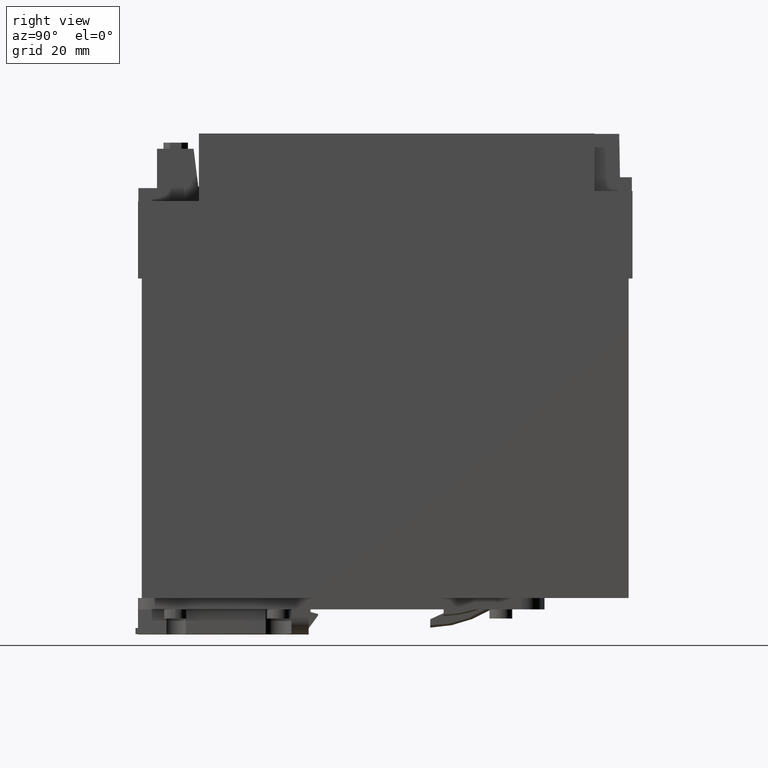
[diagram: clean part render]
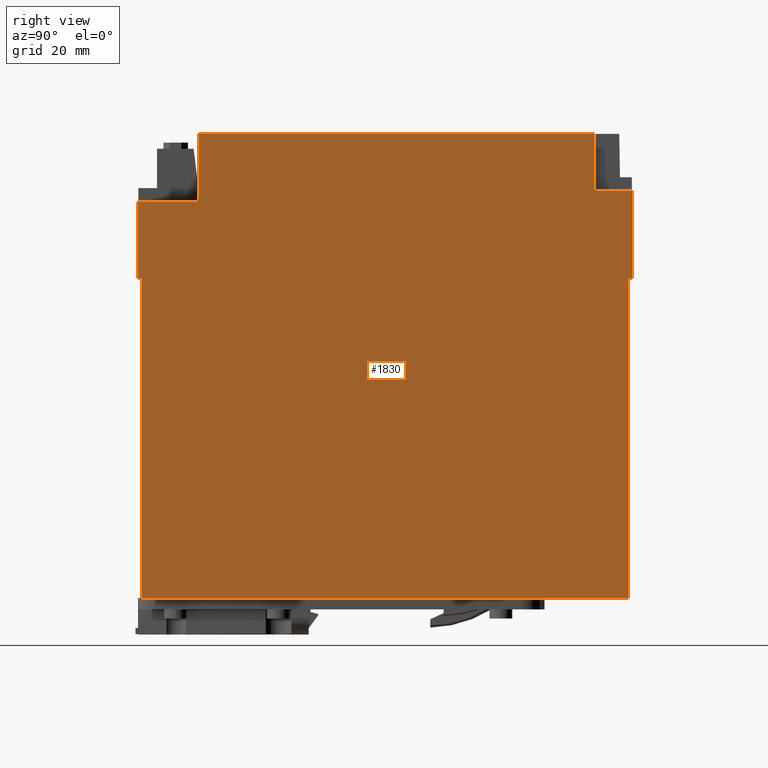
[diagram: same view with one face highlighted and labeled with its STEP entity id]
A machine part, right view. The second image highlights one B-rep face of the part: STEP entity #1830.
In plain terms, the highlighted planar face has unit normal (1, 0, 0).
Its self-contained STEP definition (entity closure, byte-faithful):
#840=CARTESIAN_POINT('',(25.2993386672442,147.1714,26.2689));
#850=DIRECTION('',(1.,0.,0.));
#860=DIRECTION('',(0.,-1.,0.));
#870=AXIS2_PLACEMENT_3D('',#840,#850,#860);
#880=PLANE('',#870);
#890=CARTESIAN_POINT('',(25.2993386672442,0.,23.));
#900=DIRECTION('',(0.,1.,0.));
#910=VECTOR('',#900,1.);
#920=LINE('',#890,#910);
#930=CARTESIAN_POINT('',(25.2993386672442,106.,23.));
#940=VERTEX_POINT('',#930);
#950=CARTESIAN_POINT('',(25.2993386672442,126.3,23.));
#960=VERTEX_POINT('',#950);
#970=EDGE_CURVE('',#940,#960,#920,.T.);
#980=ORIENTED_EDGE('',*,*,#970,.F.);
#990=CARTESIAN_POINT('',(25.2993386672442,126.3,0.));
#1000=DIRECTION('',(0.,0.,-1.));
#1010=VECTOR('',#1000,1.);
#1020=LINE('',#990,#1010);
#1030=CARTESIAN_POINT('',(25.2993386672442,126.3,7.));
#1040=VERTEX_POINT('',#1030);
#1050=EDGE_CURVE('',#960,#1040,#1020,.T.);
#1060=ORIENTED_EDGE('',*,*,#1050,.F.);
#1070=CARTESIAN_POINT('',(25.2993386672442,0.,7.));
#1080=DIRECTION('',(0.,1.,0.));
#1090=VECTOR('',#1080,1.);
#1100=LINE('',#1070,#1090);
#1110=CARTESIAN_POINT('',(25.2993386672442,144.1,7.));
#1120=VERTEX_POINT('',#1110);
#1130=EDGE_CURVE('',#1040,#1120,#1100,.T.);
#1140=ORIENTED_EDGE('',*,*,#1130,.F.);
#1150=CARTESIAN_POINT('',(25.2993386672442,144.1,0.));
#1160=DIRECTION('',(0.,0.,-1.));
#1170=VECTOR('',#1160,1.);
#1180=LINE('',#1150,#1170);
#1190=CARTESIAN_POINT('',(25.2993386672442,144.1,-97.));
#1200=VERTEX_POINT('',#1190);
#1210=EDGE_CURVE('',#1120,#1200,#1180,.T.);
#1220=ORIENTED_EDGE('',*,*,#1210,.F.);
#1230=CARTESIAN_POINT('',(25.2993386672442,0.,-97.));
#1240=DIRECTION('',(0.,-1.,0.));
#1250=VECTOR('',#1240,1.);
#1260=LINE('',#1230,#1250);
#1270=CARTESIAN_POINT('',(25.2993386672442,129.,-97.));
#1280=VERTEX_POINT('',#1270);
#1290=EDGE_CURVE('',#1200,#1280,#1260,.T.);
#1300=ORIENTED_EDGE('',*,*,#1290,.F.);
#1310=CARTESIAN_POINT('',(25.2993386672442,129.,0.));
#1320=DIRECTION('',(0.,0.,-1.));
#1330=VECTOR('',#1320,1.);
#1340=LINE('',#1310,#1330);
#1350=CARTESIAN_POINT('',(25.2993386672442,129.,-107.));
#1360=VERTEX_POINT('',#1350);
#1370=EDGE_CURVE('',#1280,#1360,#1340,.T.);
#1380=ORIENTED_EDGE('',*,*,#1370,.F.);
#1390=CARTESIAN_POINT('',(25.2993386672442,0.,-107.));
#1400=DIRECTION('',(0.,-1.,0.));
#1410=VECTOR('',#1400,1.);
#1420=LINE('',#1390,#1410);
#1430=CARTESIAN_POINT('',(25.2993386672442,106.,-107.));
#1440=VERTEX_POINT('',#1430);
#1450=EDGE_CURVE('',#1360,#1440,#1420,.T.);
#1460=ORIENTED_EDGE('',*,*,#1450,.F.);
#1470=CARTESIAN_POINT('',(25.2993386672442,106.,0.));
#1480=DIRECTION('',(0.,0.,1.));
#1490=VECTOR('',#1480,1.);
#1500=LINE('',#1470,#1490);
#1510=CARTESIAN_POINT('',(25.2993386672442,106.,-106.));
#1520=VERTEX_POINT('',#1510);
#1530=EDGE_CURVE('',#1440,#1520,#1500,.T.);
#1540=ORIENTED_EDGE('',*,*,#1530,.F.);
#1550=CARTESIAN_POINT('',(25.2993386672442,0.,-106.));
#1560=DIRECTION('',(0.,-1.,0.));
#1570=VECTOR('',#1560,1.);
#1580=LINE('',#1550,#1570);
#1590=CARTESIAN_POINT('',(25.2993386672442,22.,-106.));
#1600=VERTEX_POINT('',#1590);
#1610=EDGE_CURVE('',#1520,#1600,#1580,.T.);
#1620=ORIENTED_EDGE('',*,*,#1610,.F.);
#1630=CARTESIAN_POINT('',(25.2993386672442,22.,0.));
#1640=DIRECTION('',(0.,0.,1.));
#1650=VECTOR('',#1640,1.);
#1660=LINE('',#1630,#1650);
#1670=CARTESIAN_POINT('',(25.2993386672442,22.,22.));
#1680=VERTEX_POINT('',#1670);
#1690=EDGE_CURVE('',#1600,#1680,#1660,.T.);
#1700=ORIENTED_EDGE('',*,*,#1690,.F.);
#1710=CARTESIAN_POINT('',(25.2993386672442,0.,22.));
#1720=DIRECTION('',(0.,1.,0.));
#1730=VECTOR('',#1720,1.);
#1740=LINE('',#1710,#1730);
#1750=CARTESIAN_POINT('',(25.2993386672442,106.,22.));
#1760=VERTEX_POINT('',#1750);
#1770=EDGE_CURVE('',#1680,#1760,#1740,.T.);
#1780=ORIENTED_EDGE('',*,*,#1770,.F.);
#1790=EDGE_CURVE('',#1760,#940,#1500,.T.);
#1800=ORIENTED_EDGE('',*,*,#1790,.F.);
#1810=EDGE_LOOP('',(#1800,#1780,#1700,#1620,#1540,#1460,#1380,#1300,
#1220,#1140,#1060,#980));
#1820=FACE_OUTER_BOUND('',#1810,.T.);
#1830=ADVANCED_FACE('',(#1820),#880,.T.);